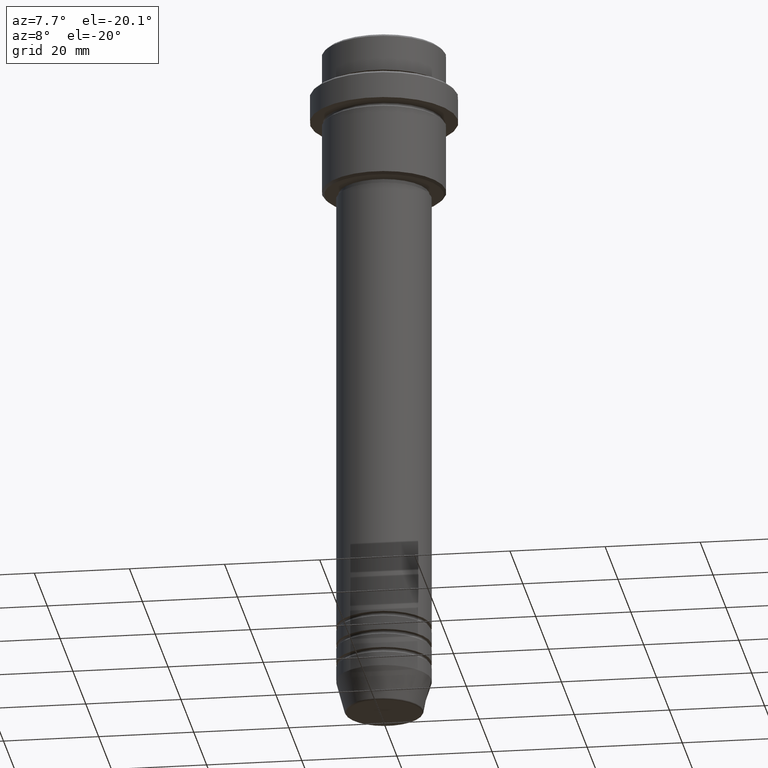
[diagram: clean part render]
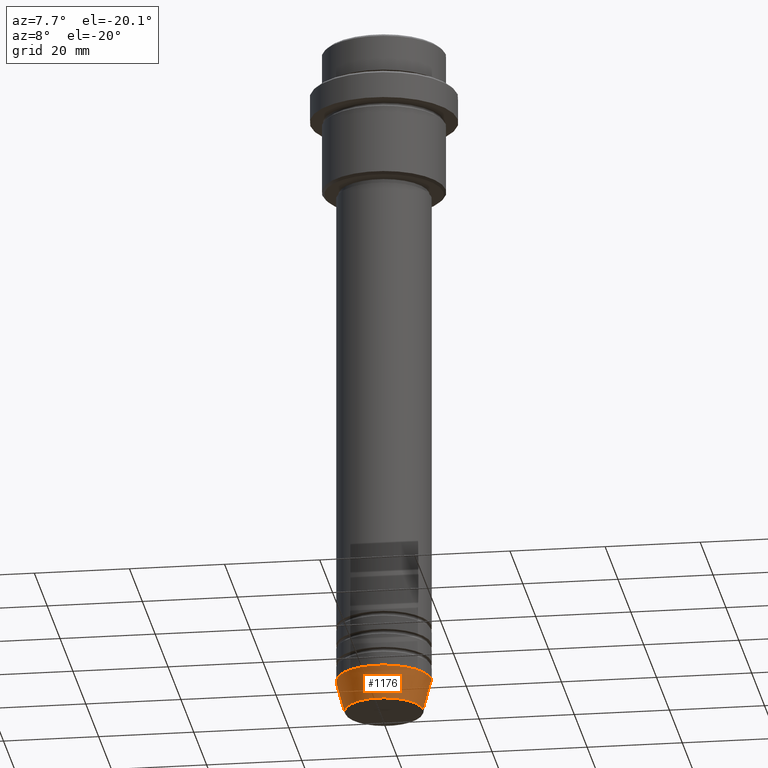
[diagram: same view with one face highlighted and labeled with its STEP entity id]
A machine part, auxiliary view. The second image highlights one B-rep face of the part: STEP entity #1176.
In plain terms, the highlighted conical surface has half-angle 15 deg.
Its self-contained STEP definition (entity closure, byte-faithful):
#200 = CONICAL_SURFACE ( 'NONE', #790, 10.00000000000000000, 0.2617993877991502405 ) ;
#201 = ORIENTED_EDGE ( 'NONE', *, *, #933, .T. ) ;
#206 = DIRECTION ( 'NONE',  ( 1.000000000000000000, 0.000000000000000000, 0.000000000000000000 ) ) ;
#216 = VERTEX_POINT ( 'NONE', #592 ) ;
#256 = CARTESIAN_POINT ( 'NONE',  ( 10.00000000000000000, 0.000000000000000000, -139.0000000000000000 ) ) ;
#297 = VECTOR ( 'NONE', #676, 1000.000000000000114 ) ;
#309 = VERTEX_POINT ( 'NONE', #887 ) ;
#318 = AXIS2_PLACEMENT_3D ( 'NONE', #1233, #1353, #479 ) ;
#329 = FACE_OUTER_BOUND ( 'NONE', #490, .T. ) ;
#333 = CARTESIAN_POINT ( 'NONE',  ( 8.223655072137189492, 0.000000000000000000, -145.6294095225512706 ) ) ;
#348 = VERTEX_POINT ( 'NONE', #333 ) ;
#356 = ORIENTED_EDGE ( 'NONE', *, *, #388, .F. ) ;
#362 = LINE ( 'NONE', #256, #297 ) ;
#365 = CARTESIAN_POINT ( 'NONE',  ( -10.00000000000000000, 1.224646799147353256E-15, -139.0000000000000000 ) ) ;
#382 = CARTESIAN_POINT ( 'NONE',  ( 0.000000000000000000, 0.000000000000000000, -145.6294095225512706 ) ) ;
#388 = EDGE_CURVE ( 'NONE', #309, #403, #1209, .T. ) ;
#403 = VERTEX_POINT ( 'NONE', #365 ) ;
#404 = EDGE_CURVE ( 'NONE', #403, #216, #935, .T. ) ;
#427 = EDGE_CURVE ( 'NONE', #309, #348, #916, .T. ) ;
#479 = DIRECTION ( 'NONE',  ( 1.000000000000000000, 0.000000000000000000, 0.000000000000000000 ) ) ;
#489 = AXIS2_PLACEMENT_3D ( 'NONE', #382, #788, #1239 ) ;
#490 = EDGE_LOOP ( 'NONE', ( #356, #1105, #201, #1063 ) ) ;
#592 = CARTESIAN_POINT ( 'NONE',  ( 10.00000000000000000, 0.000000000000000000, -139.0000000000000000 ) ) ;
#676 = DIRECTION ( 'NONE',  ( 0.2588190451025214611, 0.000000000000000000, 0.9659258262890679791 ) ) ;
#788 = DIRECTION ( 'NONE',  ( -0.000000000000000000, -0.000000000000000000, 1.000000000000000000 ) ) ;
#790 = AXIS2_PLACEMENT_3D ( 'NONE', #877, #854, #206 ) ;
#854 = DIRECTION ( 'NONE',  ( -0.000000000000000000, -0.000000000000000000, 1.000000000000000000 ) ) ;
#857 = CARTESIAN_POINT ( 'NONE',  ( -10.00000000000000000, 1.224646799147353256E-15, -139.0000000000000000 ) ) ;
#877 = CARTESIAN_POINT ( 'NONE',  ( 0.000000000000000000, 0.000000000000000000, -139.0000000000000000 ) ) ;
#887 = CARTESIAN_POINT ( 'NONE',  ( -8.223655072137189492, 1.115877042642911856E-15, -145.6294095225512706 ) ) ;
#916 = CIRCLE ( 'NONE', #489, 8.223655072137189492 ) ;
#933 = EDGE_CURVE ( 'NONE', #348, #216, #362, .T. ) ;
#935 = CIRCLE ( 'NONE', #318, 10.00000000000000000 ) ;
#975 = DIRECTION ( 'NONE',  ( -0.2588190451025214611, 3.169619151431774186E-17, 0.9659258262890679791 ) ) ;
#1063 = ORIENTED_EDGE ( 'NONE', *, *, #404, .F. ) ;
#1105 = ORIENTED_EDGE ( 'NONE', *, *, #427, .T. ) ;
#1176 = ADVANCED_FACE ( 'NONE', ( #329 ), #200, .T. ) ;
#1209 = LINE ( 'NONE', #857, #1378 ) ;
#1233 = CARTESIAN_POINT ( 'NONE',  ( 0.000000000000000000, 0.000000000000000000, -139.0000000000000000 ) ) ;
#1239 = DIRECTION ( 'NONE',  ( 1.000000000000000000, 0.000000000000000000, 0.000000000000000000 ) ) ;
#1353 = DIRECTION ( 'NONE',  ( -0.000000000000000000, -0.000000000000000000, 1.000000000000000000 ) ) ;
#1378 = VECTOR ( 'NONE', #975, 1000.000000000000114 ) ;